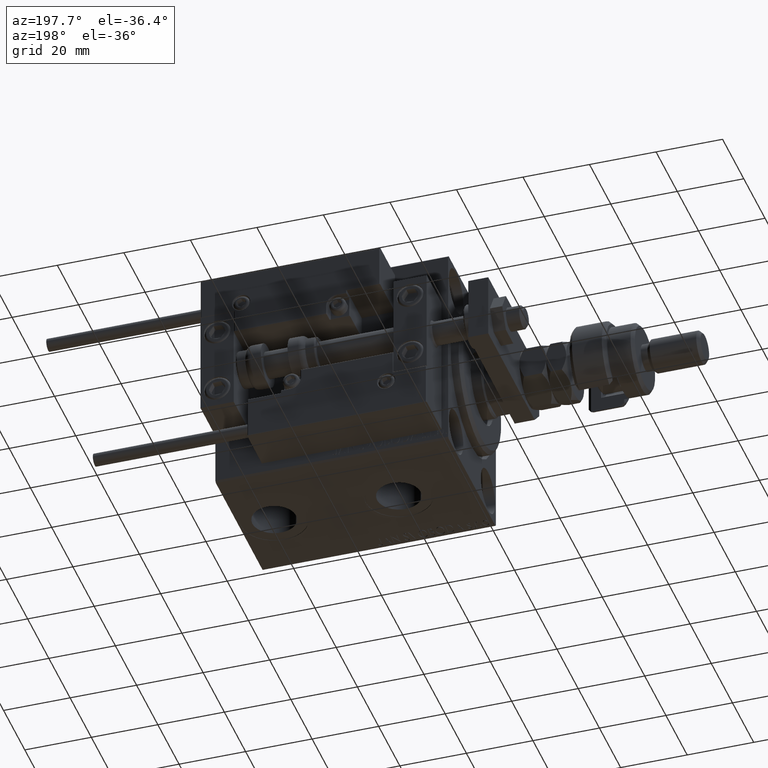
[diagram: clean part render]
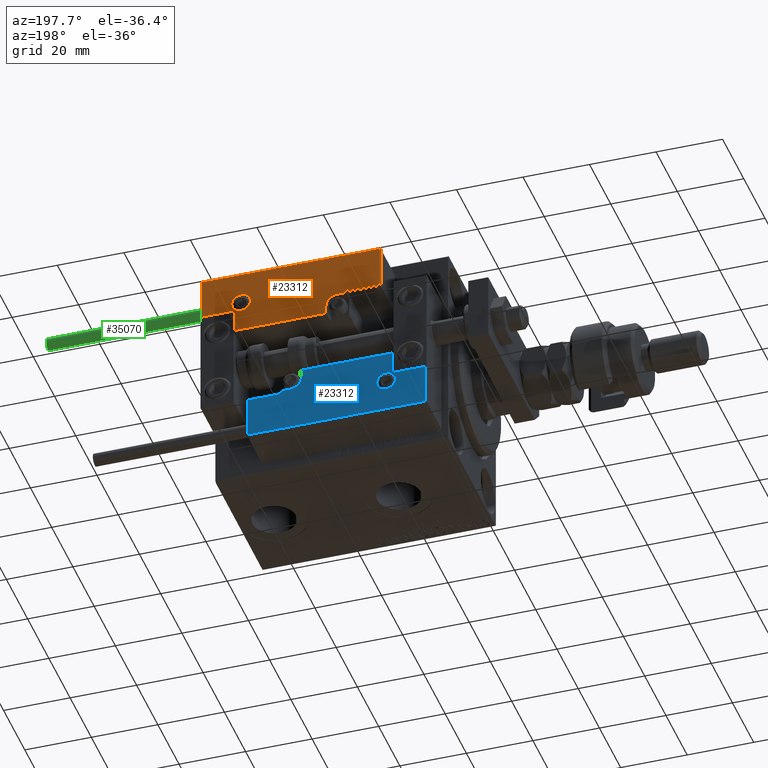
[diagram: same view with three faces highlighted in distinct colors, each labeled with its STEP entity id]
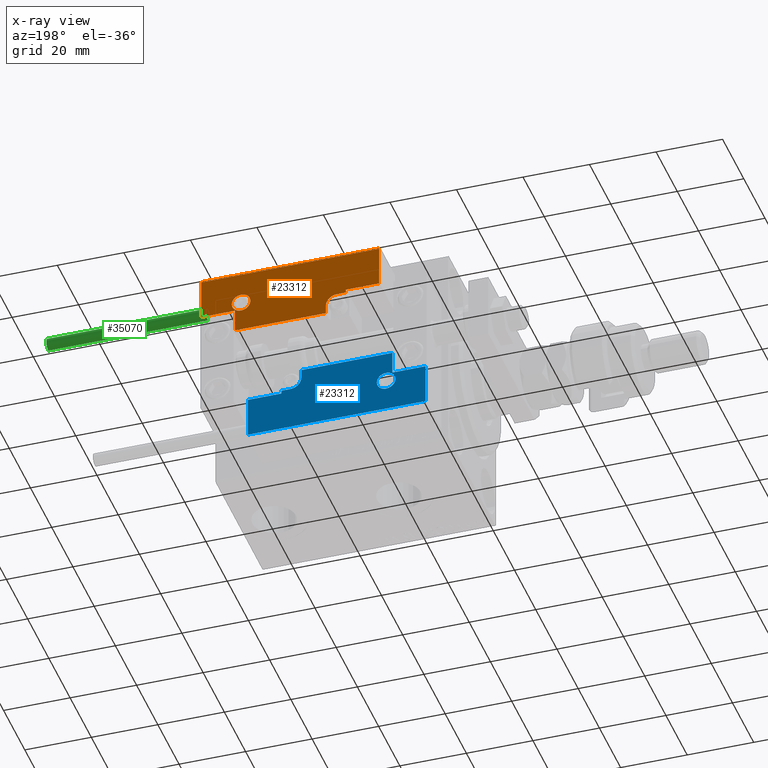
[diagram: x-ray of the same camera — body ghosted, the three highlighted faces saturated]
A machine part, auxiliary view with three faces highlighted in distinct colors.
The next image is the same camera in x-ray (body ghosted, the three faces saturated) — at least one of them is partly hidden behind the body in this view.
Their STEP definitions:

[orange] entity #23312 — the highlighted planar face has unit normal (0, 1, -0).
#236 = LINE ( 'NONE', #46682, #44956 ) ;
#1517 = FACE_BOUND ( 'NONE', #27808, .T. ) ;
#1720 = EDGE_CURVE ( 'NONE', #45491, #32189, #6493, .T. ) ;
#2105 = AXIS2_PLACEMENT_3D ( 'NONE', #18276, #8935, #42463 ) ;
#2129 = CARTESIAN_POINT ( 'NONE',  ( 16.69999999999999929, 7.000000000000009770, 14.00000000000000000 ) ) ;
#3118 = VECTOR ( 'NONE', #28519, 1000.000000000000000 ) ;
#3314 = AXIS2_PLACEMENT_3D ( 'NONE', #18084, #34855, #38711 ) ;
#3711 = CARTESIAN_POINT ( 'NONE',  ( 11.00000000000000000, 0.3000000000000032085, 14.00000000000000000 ) ) ;
#4548 = FACE_OUTER_BOUND ( 'NONE', #38351, .T. ) ;
#4816 = ORIENTED_EDGE ( 'NONE', *, *, #30326, .T. ) ;
#5011 = EDGE_CURVE ( 'NONE', #23961, #24970, #16414, .T. ) ;
#5550 = CARTESIAN_POINT ( 'NONE',  ( 26.70000000000006324, 19.70000000000001705, 14.00000000000000000 ) ) ;
#5826 = ORIENTED_EDGE ( 'NONE', *, *, #10098, .T. ) ;
#5973 = LINE ( 'NONE', #22728, #50767 ) ;
#6493 = CIRCLE ( 'NONE', #43337, 2.800000000000000266 ) ;
#7838 = VERTEX_POINT ( 'NONE', #5550 ) ;
#8111 = VECTOR ( 'NONE', #9545, 1000.000000000000000 ) ;
#8544 = VECTOR ( 'NONE', #35937, 1000.000000000000000 ) ;
#8789 = CARTESIAN_POINT ( 'NONE',  ( -17.59999999999994813, 9.800000000000004263, 14.00000000000000000 ) ) ;
#8935 = DIRECTION ( 'NONE',  ( -0.000000000000000000, 0.000000000000000000, 1.000000000000000000 ) ) ;
#9347 = CARTESIAN_POINT ( 'NONE',  ( 16.69999999999999929, 6.300000000000003375, 14.00000000000000000 ) ) ;
#9545 = DIRECTION ( 'NONE',  ( 0.000000000000000000, 1.000000000000000000, -0.000000000000000000 ) ) ;
#9729 = DIRECTION ( 'NONE',  ( 1.000000000000000000, 5.782411586589357639E-16, -0.000000000000000000 ) ) ;
#10098 = EDGE_CURVE ( 'NONE', #24970, #48032, #25236, .T. ) ;
#10448 = DIRECTION ( 'NONE',  ( 1.000000000000000000, -1.734723475976815230E-16, 0.000000000000000000 ) ) ;
#10600 = VERTEX_POINT ( 'NONE', #27606 ) ;
#11315 = DIRECTION ( 'NONE',  ( 1.000000000000000000, 0.000000000000000000, 0.000000000000000000 ) ) ;
#11507 = LINE ( 'NONE', #49420, #23176 ) ;
#11827 = EDGE_CURVE ( 'NONE', #45179, #28723, #35729, .T. ) ;
#12784 = DIRECTION ( 'NONE',  ( 1.000000000000000000, -0.000000000000000000, 0.000000000000000000 ) ) ;
#13261 = ORIENTED_EDGE ( 'NONE', *, *, #41959, .T. ) ;
#13847 = EDGE_CURVE ( 'NONE', #48032, #40675, #14126, .T. ) ;
#14126 = LINE ( 'NONE', #30625, #22947 ) ;
#14564 = CARTESIAN_POINT ( 'NONE',  ( 10.69999999999999929, 3.000000000000003109, 14.00000000000000000 ) ) ;
#15610 = CIRCLE ( 'NONE', #50717, 2.800000000000000266 ) ;
#15704 = DIRECTION ( 'NONE',  ( 0.000000000000000000, -0.000000000000000000, -1.000000000000000000 ) ) ;
#16414 = LINE ( 'NONE', #37037, #3118 ) ;
#17125 = ORIENTED_EDGE ( 'NONE', *, *, #13847, .T. ) ;
#18084 = CARTESIAN_POINT ( 'NONE',  ( 13.99999999999999822, 3.000000000000002665, 14.00000000000000000 ) ) ;
#18276 = CARTESIAN_POINT ( 'NONE',  ( 0.000000000000000000, 0.000000000000000000, 14.00000000000000000 ) ) ;
#18604 = DIRECTION ( 'NONE',  ( 0.000000000000000000, -1.000000000000000000, 0.000000000000000000 ) ) ;
#19535 = CARTESIAN_POINT ( 'NONE',  ( -11.99999999999994849, 9.800000000000004263, 14.00000000000000000 ) ) ;
#19909 = CARTESIAN_POINT ( 'NONE',  ( -16.69999999999999218, 7.300000000000003375, 14.00000000000000000 ) ) ;
#20152 = EDGE_CURVE ( 'NONE', #51452, #38595, #11507, .T. ) ;
#20999 = DIRECTION ( 'NONE',  ( 0.000000000000000000, -0.000000000000000000, -1.000000000000000000 ) ) ;
#21382 = LINE ( 'NONE', #50797, #21646 ) ;
#21646 = VECTOR ( 'NONE', #47229, 1000.000000000000000 ) ;
#21911 = EDGE_CURVE ( 'NONE', #50750, #23961, #50427, .T. ) ;
#22728 = CARTESIAN_POINT ( 'NONE',  ( -16.69999999999999218, 3.252606517456513302E-15, 14.00000000000000000 ) ) ;
#22947 = VECTOR ( 'NONE', #9729, 1000.000000000000000 ) ;
#23176 = VECTOR ( 'NONE', #40901, 1000.000000000000000 ) ;
#23312 = ADVANCED_FACE ( 'NONE', ( #1517, #4548 ), #25976, .T. ) ;
#23961 = VERTEX_POINT ( 'NONE', #30527 ) ;
#24673 = ORIENTED_EDGE ( 'NONE', *, *, #1720, .T. ) ;
#24970 = VERTEX_POINT ( 'NONE', #14564 ) ;
#25025 = VECTOR ( 'NONE', #12784, 1000.000000000000000 ) ;
#25236 = CIRCLE ( 'NONE', #3314, 3.299999999999997158 ) ;
#25976 = PLANE ( 'NONE',  #2105 ) ;
#26295 = LINE ( 'NONE', #43066, #8111 ) ;
#27606 = CARTESIAN_POINT ( 'NONE',  ( -26.69999999999993534, 19.70000000000002061, 14.00000000000000000 ) ) ;
#27808 = EDGE_LOOP ( 'NONE', ( #32474, #24673 ) ) ;
#28519 = DIRECTION ( 'NONE',  ( -0.000000000000000000, 1.000000000000000000, -0.000000000000000000 ) ) ;
#28723 = VERTEX_POINT ( 'NONE', #19909 ) ;
#29283 = ORIENTED_EDGE ( 'NONE', *, *, #29295, .T. ) ;
#29295 = EDGE_CURVE ( 'NONE', #10600, #45179, #21382, .T. ) ;
#30074 = CARTESIAN_POINT ( 'NONE',  ( -14.79999999999994920, 9.800000000000004263, 14.00000000000000000 ) ) ;
#30326 = EDGE_CURVE ( 'NONE', #40675, #51452, #31277, .T. ) ;
#30527 = CARTESIAN_POINT ( 'NONE',  ( 10.69999999999999929, 0.3000000000000032085, 14.00000000000000000 ) ) ;
#30625 = CARTESIAN_POINT ( 'NONE',  ( 17.00000000000000000, 6.300000000000003375, 14.00000000000000000 ) ) ;
#30906 = EDGE_CURVE ( 'NONE', #32189, #45491, #15610, .T. ) ;
#31277 = LINE ( 'NONE', #2129, #8544 ) ;
#32189 = VERTEX_POINT ( 'NONE', #19535 ) ;
#32474 = ORIENTED_EDGE ( 'NONE', *, *, #30906, .T. ) ;
#34750 = DIRECTION ( 'NONE',  ( 1.000000000000000000, 0.000000000000000000, 0.000000000000000000 ) ) ;
#34855 = DIRECTION ( 'NONE',  ( 0.000000000000000000, -0.000000000000000000, -1.000000000000000000 ) ) ;
#35729 = LINE ( 'NONE', #48093, #43061 ) ;
#35937 = DIRECTION ( 'NONE',  ( 9.912705577010318647E-16, 1.000000000000000000, 0.000000000000000000 ) ) ;
#37037 = CARTESIAN_POINT ( 'NONE',  ( 10.69999999999999929, 3.000000000000003109, 14.00000000000000000 ) ) ;
#37461 = ORIENTED_EDGE ( 'NONE', *, *, #11827, .T. ) ;
#37927 = ORIENTED_EDGE ( 'NONE', *, *, #21911, .T. ) ;
#38351 = EDGE_LOOP ( 'NONE', ( #13261, #37927, #46037, #5826, #17125, #4816, #45709, #42967, #46381, #29283, #37461 ) ) ;
#38595 = VERTEX_POINT ( 'NONE', #42474 ) ;
#38711 = DIRECTION ( 'NONE',  ( 1.000000000000000000, 0.000000000000000000, 0.000000000000000000 ) ) ;
#40675 = VERTEX_POINT ( 'NONE', #9347 ) ;
#40901 = DIRECTION ( 'NONE',  ( 1.000000000000000000, -1.734723475976796001E-16, 0.000000000000000000 ) ) ;
#41959 = EDGE_CURVE ( 'NONE', #28723, #50750, #5973, .T. ) ;
#42463 = DIRECTION ( 'NONE',  ( 1.000000000000000000, 0.000000000000000000, 0.000000000000000000 ) ) ;
#42474 = CARTESIAN_POINT ( 'NONE',  ( 26.70000000000006324, 7.300000000000007816, 14.00000000000000000 ) ) ;
#42967 = ORIENTED_EDGE ( 'NONE', *, *, #54181, .T. ) ;
#43061 = VECTOR ( 'NONE', #10448, 1000.000000000000000 ) ;
#43066 = CARTESIAN_POINT ( 'NONE',  ( 26.70000000000006324, 20.00000000000001776, 14.00000000000000000 ) ) ;
#43337 = AXIS2_PLACEMENT_3D ( 'NONE', #45100, #15704, #11315 ) ;
#44405 = CARTESIAN_POINT ( 'NONE',  ( -26.69999999999994600, 7.300000000000005151, 14.00000000000000000 ) ) ;
#44956 = VECTOR ( 'NONE', #50805, 1000.000000000000000 ) ;
#45100 = CARTESIAN_POINT ( 'NONE',  ( -14.79999999999994920, 9.800000000000004263, 14.00000000000000000 ) ) ;
#45179 = VERTEX_POINT ( 'NONE', #44405 ) ;
#45491 = VERTEX_POINT ( 'NONE', #8789 ) ;
#45709 = ORIENTED_EDGE ( 'NONE', *, *, #20152, .T. ) ;
#46037 = ORIENTED_EDGE ( 'NONE', *, *, #5011, .T. ) ;
#46381 = ORIENTED_EDGE ( 'NONE', *, *, #50051, .T. ) ;
#46682 = CARTESIAN_POINT ( 'NONE',  ( -26.99999999999993605, 19.70000000000002061, 14.00000000000000000 ) ) ;
#47229 = DIRECTION ( 'NONE',  ( -8.006416042969869188E-16, -1.000000000000000000, 0.000000000000000000 ) ) ;
#48032 = VERTEX_POINT ( 'NONE', #50540 ) ;
#48093 = CARTESIAN_POINT ( 'NONE',  ( -16.99999999999999289, 7.300000000000003375, 14.00000000000000000 ) ) ;
#49420 = CARTESIAN_POINT ( 'NONE',  ( 27.00000000000006395, 7.300000000000007816, 14.00000000000000000 ) ) ;
#50051 = EDGE_CURVE ( 'NONE', #7838, #10600, #236, .T. ) ;
#50421 = CARTESIAN_POINT ( 'NONE',  ( 16.69999999999999929, 7.300000000000009592, 14.00000000000000000 ) ) ;
#50427 = LINE ( 'NONE', #3711, #25025 ) ;
#50540 = CARTESIAN_POINT ( 'NONE',  ( 13.99999999999999822, 6.300000000000001599, 14.00000000000000000 ) ) ;
#50717 = AXIS2_PLACEMENT_3D ( 'NONE', #30074, #20999, #34750 ) ;
#50750 = VERTEX_POINT ( 'NONE', #52303 ) ;
#50767 = VECTOR ( 'NONE', #18604, 1000.000000000000000 ) ;
#50797 = CARTESIAN_POINT ( 'NONE',  ( -26.69999999999994600, 7.000000000000005329, 14.00000000000000000 ) ) ;
#50805 = DIRECTION ( 'NONE',  ( -1.000000000000000000, 6.424901762877063495E-17, -0.000000000000000000 ) ) ;
#51452 = VERTEX_POINT ( 'NONE', #50421 ) ;
#52303 = CARTESIAN_POINT ( 'NONE',  ( -16.69999999999999218, 0.3000000000000032085, 14.00000000000000000 ) ) ;
#54181 = EDGE_CURVE ( 'NONE', #38595, #7838, #26295, .T. ) ;

[blue] entity #23312 — the highlighted planar face has unit normal (-0, 1, -0).
#236 = LINE ( 'NONE', #46682, #44956 ) ;
#1517 = FACE_BOUND ( 'NONE', #27808, .T. ) ;
#1720 = EDGE_CURVE ( 'NONE', #45491, #32189, #6493, .T. ) ;
#2105 = AXIS2_PLACEMENT_3D ( 'NONE', #18276, #8935, #42463 ) ;
#2129 = CARTESIAN_POINT ( 'NONE',  ( 16.69999999999999929, 7.000000000000009770, 14.00000000000000000 ) ) ;
#3118 = VECTOR ( 'NONE', #28519, 1000.000000000000000 ) ;
#3314 = AXIS2_PLACEMENT_3D ( 'NONE', #18084, #34855, #38711 ) ;
#3711 = CARTESIAN_POINT ( 'NONE',  ( 11.00000000000000000, 0.3000000000000032085, 14.00000000000000000 ) ) ;
#4548 = FACE_OUTER_BOUND ( 'NONE', #38351, .T. ) ;
#4816 = ORIENTED_EDGE ( 'NONE', *, *, #30326, .T. ) ;
#5011 = EDGE_CURVE ( 'NONE', #23961, #24970, #16414, .T. ) ;
#5550 = CARTESIAN_POINT ( 'NONE',  ( 26.70000000000006324, 19.70000000000001705, 14.00000000000000000 ) ) ;
#5826 = ORIENTED_EDGE ( 'NONE', *, *, #10098, .T. ) ;
#5973 = LINE ( 'NONE', #22728, #50767 ) ;
#6493 = CIRCLE ( 'NONE', #43337, 2.800000000000000266 ) ;
#7838 = VERTEX_POINT ( 'NONE', #5550 ) ;
#8111 = VECTOR ( 'NONE', #9545, 1000.000000000000000 ) ;
#8544 = VECTOR ( 'NONE', #35937, 1000.000000000000000 ) ;
#8789 = CARTESIAN_POINT ( 'NONE',  ( -17.59999999999994813, 9.800000000000004263, 14.00000000000000000 ) ) ;
#8935 = DIRECTION ( 'NONE',  ( -0.000000000000000000, 0.000000000000000000, 1.000000000000000000 ) ) ;
#9347 = CARTESIAN_POINT ( 'NONE',  ( 16.69999999999999929, 6.300000000000003375, 14.00000000000000000 ) ) ;
#9545 = DIRECTION ( 'NONE',  ( 0.000000000000000000, 1.000000000000000000, -0.000000000000000000 ) ) ;
#9729 = DIRECTION ( 'NONE',  ( 1.000000000000000000, 5.782411586589357639E-16, -0.000000000000000000 ) ) ;
#10098 = EDGE_CURVE ( 'NONE', #24970, #48032, #25236, .T. ) ;
#10448 = DIRECTION ( 'NONE',  ( 1.000000000000000000, -1.734723475976815230E-16, 0.000000000000000000 ) ) ;
#10600 = VERTEX_POINT ( 'NONE', #27606 ) ;
#11315 = DIRECTION ( 'NONE',  ( 1.000000000000000000, 0.000000000000000000, 0.000000000000000000 ) ) ;
#11507 = LINE ( 'NONE', #49420, #23176 ) ;
#11827 = EDGE_CURVE ( 'NONE', #45179, #28723, #35729, .T. ) ;
#12784 = DIRECTION ( 'NONE',  ( 1.000000000000000000, -0.000000000000000000, 0.000000000000000000 ) ) ;
#13261 = ORIENTED_EDGE ( 'NONE', *, *, #41959, .T. ) ;
#13847 = EDGE_CURVE ( 'NONE', #48032, #40675, #14126, .T. ) ;
#14126 = LINE ( 'NONE', #30625, #22947 ) ;
#14564 = CARTESIAN_POINT ( 'NONE',  ( 10.69999999999999929, 3.000000000000003109, 14.00000000000000000 ) ) ;
#15610 = CIRCLE ( 'NONE', #50717, 2.800000000000000266 ) ;
#15704 = DIRECTION ( 'NONE',  ( 0.000000000000000000, -0.000000000000000000, -1.000000000000000000 ) ) ;
#16414 = LINE ( 'NONE', #37037, #3118 ) ;
#17125 = ORIENTED_EDGE ( 'NONE', *, *, #13847, .T. ) ;
#18084 = CARTESIAN_POINT ( 'NONE',  ( 13.99999999999999822, 3.000000000000002665, 14.00000000000000000 ) ) ;
#18276 = CARTESIAN_POINT ( 'NONE',  ( 0.000000000000000000, 0.000000000000000000, 14.00000000000000000 ) ) ;
#18604 = DIRECTION ( 'NONE',  ( 0.000000000000000000, -1.000000000000000000, 0.000000000000000000 ) ) ;
#19535 = CARTESIAN_POINT ( 'NONE',  ( -11.99999999999994849, 9.800000000000004263, 14.00000000000000000 ) ) ;
#19909 = CARTESIAN_POINT ( 'NONE',  ( -16.69999999999999218, 7.300000000000003375, 14.00000000000000000 ) ) ;
#20152 = EDGE_CURVE ( 'NONE', #51452, #38595, #11507, .T. ) ;
#20999 = DIRECTION ( 'NONE',  ( 0.000000000000000000, -0.000000000000000000, -1.000000000000000000 ) ) ;
#21382 = LINE ( 'NONE', #50797, #21646 ) ;
#21646 = VECTOR ( 'NONE', #47229, 1000.000000000000000 ) ;
#21911 = EDGE_CURVE ( 'NONE', #50750, #23961, #50427, .T. ) ;
#22728 = CARTESIAN_POINT ( 'NONE',  ( -16.69999999999999218, 3.252606517456513302E-15, 14.00000000000000000 ) ) ;
#22947 = VECTOR ( 'NONE', #9729, 1000.000000000000000 ) ;
#23176 = VECTOR ( 'NONE', #40901, 1000.000000000000000 ) ;
#23312 = ADVANCED_FACE ( 'NONE', ( #1517, #4548 ), #25976, .T. ) ;
#23961 = VERTEX_POINT ( 'NONE', #30527 ) ;
#24673 = ORIENTED_EDGE ( 'NONE', *, *, #1720, .T. ) ;
#24970 = VERTEX_POINT ( 'NONE', #14564 ) ;
#25025 = VECTOR ( 'NONE', #12784, 1000.000000000000000 ) ;
#25236 = CIRCLE ( 'NONE', #3314, 3.299999999999997158 ) ;
#25976 = PLANE ( 'NONE',  #2105 ) ;
#26295 = LINE ( 'NONE', #43066, #8111 ) ;
#27606 = CARTESIAN_POINT ( 'NONE',  ( -26.69999999999993534, 19.70000000000002061, 14.00000000000000000 ) ) ;
#27808 = EDGE_LOOP ( 'NONE', ( #32474, #24673 ) ) ;
#28519 = DIRECTION ( 'NONE',  ( -0.000000000000000000, 1.000000000000000000, -0.000000000000000000 ) ) ;
#28723 = VERTEX_POINT ( 'NONE', #19909 ) ;
#29283 = ORIENTED_EDGE ( 'NONE', *, *, #29295, .T. ) ;
#29295 = EDGE_CURVE ( 'NONE', #10600, #45179, #21382, .T. ) ;
#30074 = CARTESIAN_POINT ( 'NONE',  ( -14.79999999999994920, 9.800000000000004263, 14.00000000000000000 ) ) ;
#30326 = EDGE_CURVE ( 'NONE', #40675, #51452, #31277, .T. ) ;
#30527 = CARTESIAN_POINT ( 'NONE',  ( 10.69999999999999929, 0.3000000000000032085, 14.00000000000000000 ) ) ;
#30625 = CARTESIAN_POINT ( 'NONE',  ( 17.00000000000000000, 6.300000000000003375, 14.00000000000000000 ) ) ;
#30906 = EDGE_CURVE ( 'NONE', #32189, #45491, #15610, .T. ) ;
#31277 = LINE ( 'NONE', #2129, #8544 ) ;
#32189 = VERTEX_POINT ( 'NONE', #19535 ) ;
#32474 = ORIENTED_EDGE ( 'NONE', *, *, #30906, .T. ) ;
#34750 = DIRECTION ( 'NONE',  ( 1.000000000000000000, 0.000000000000000000, 0.000000000000000000 ) ) ;
#34855 = DIRECTION ( 'NONE',  ( 0.000000000000000000, -0.000000000000000000, -1.000000000000000000 ) ) ;
#35729 = LINE ( 'NONE', #48093, #43061 ) ;
#35937 = DIRECTION ( 'NONE',  ( 9.912705577010318647E-16, 1.000000000000000000, 0.000000000000000000 ) ) ;
#37037 = CARTESIAN_POINT ( 'NONE',  ( 10.69999999999999929, 3.000000000000003109, 14.00000000000000000 ) ) ;
#37461 = ORIENTED_EDGE ( 'NONE', *, *, #11827, .T. ) ;
#37927 = ORIENTED_EDGE ( 'NONE', *, *, #21911, .T. ) ;
#38351 = EDGE_LOOP ( 'NONE', ( #13261, #37927, #46037, #5826, #17125, #4816, #45709, #42967, #46381, #29283, #37461 ) ) ;
#38595 = VERTEX_POINT ( 'NONE', #42474 ) ;
#38711 = DIRECTION ( 'NONE',  ( 1.000000000000000000, 0.000000000000000000, 0.000000000000000000 ) ) ;
#40675 = VERTEX_POINT ( 'NONE', #9347 ) ;
#40901 = DIRECTION ( 'NONE',  ( 1.000000000000000000, -1.734723475976796001E-16, 0.000000000000000000 ) ) ;
#41959 = EDGE_CURVE ( 'NONE', #28723, #50750, #5973, .T. ) ;
#42463 = DIRECTION ( 'NONE',  ( 1.000000000000000000, 0.000000000000000000, 0.000000000000000000 ) ) ;
#42474 = CARTESIAN_POINT ( 'NONE',  ( 26.70000000000006324, 7.300000000000007816, 14.00000000000000000 ) ) ;
#42967 = ORIENTED_EDGE ( 'NONE', *, *, #54181, .T. ) ;
#43061 = VECTOR ( 'NONE', #10448, 1000.000000000000000 ) ;
#43066 = CARTESIAN_POINT ( 'NONE',  ( 26.70000000000006324, 20.00000000000001776, 14.00000000000000000 ) ) ;
#43337 = AXIS2_PLACEMENT_3D ( 'NONE', #45100, #15704, #11315 ) ;
#44405 = CARTESIAN_POINT ( 'NONE',  ( -26.69999999999994600, 7.300000000000005151, 14.00000000000000000 ) ) ;
#44956 = VECTOR ( 'NONE', #50805, 1000.000000000000000 ) ;
#45100 = CARTESIAN_POINT ( 'NONE',  ( -14.79999999999994920, 9.800000000000004263, 14.00000000000000000 ) ) ;
#45179 = VERTEX_POINT ( 'NONE', #44405 ) ;
#45491 = VERTEX_POINT ( 'NONE', #8789 ) ;
#45709 = ORIENTED_EDGE ( 'NONE', *, *, #20152, .T. ) ;
#46037 = ORIENTED_EDGE ( 'NONE', *, *, #5011, .T. ) ;
#46381 = ORIENTED_EDGE ( 'NONE', *, *, #50051, .T. ) ;
#46682 = CARTESIAN_POINT ( 'NONE',  ( -26.99999999999993605, 19.70000000000002061, 14.00000000000000000 ) ) ;
#47229 = DIRECTION ( 'NONE',  ( -8.006416042969869188E-16, -1.000000000000000000, 0.000000000000000000 ) ) ;
#48032 = VERTEX_POINT ( 'NONE', #50540 ) ;
#48093 = CARTESIAN_POINT ( 'NONE',  ( -16.99999999999999289, 7.300000000000003375, 14.00000000000000000 ) ) ;
#49420 = CARTESIAN_POINT ( 'NONE',  ( 27.00000000000006395, 7.300000000000007816, 14.00000000000000000 ) ) ;
#50051 = EDGE_CURVE ( 'NONE', #7838, #10600, #236, .T. ) ;
#50421 = CARTESIAN_POINT ( 'NONE',  ( 16.69999999999999929, 7.300000000000009592, 14.00000000000000000 ) ) ;
#50427 = LINE ( 'NONE', #3711, #25025 ) ;
#50540 = CARTESIAN_POINT ( 'NONE',  ( 13.99999999999999822, 6.300000000000001599, 14.00000000000000000 ) ) ;
#50717 = AXIS2_PLACEMENT_3D ( 'NONE', #30074, #20999, #34750 ) ;
#50750 = VERTEX_POINT ( 'NONE', #52303 ) ;
#50767 = VECTOR ( 'NONE', #18604, 1000.000000000000000 ) ;
#50797 = CARTESIAN_POINT ( 'NONE',  ( -26.69999999999994600, 7.000000000000005329, 14.00000000000000000 ) ) ;
#50805 = DIRECTION ( 'NONE',  ( -1.000000000000000000, 6.424901762877063495E-17, -0.000000000000000000 ) ) ;
#51452 = VERTEX_POINT ( 'NONE', #50421 ) ;
#52303 = CARTESIAN_POINT ( 'NONE',  ( -16.69999999999999218, 0.3000000000000032085, 14.00000000000000000 ) ) ;
#54181 = EDGE_CURVE ( 'NONE', #38595, #7838, #26295, .T. ) ;

[green] entity #35070 — the highlighted cylindrical surface (edge-blend (fillet) strip) has radius 1.9 mm, axis along (-1, -0, 0).
#743 = EDGE_CURVE ( 'NONE', #21976, #34455, #32184, .T. ) ;
#1111 = VECTOR ( 'NONE', #26891, 1000.000000000000000 ) ;
#2745 = VERTEX_POINT ( 'NONE', #48227 ) ;
#4062 = CYLINDRICAL_SURFACE ( 'NONE', #41060, 1.899999999999999467 ) ;
#4531 = CARTESIAN_POINT ( 'NONE',  ( -1.899999999999999467, 0.000000000000000000, 48.00000000000000000 ) ) ;
#5048 = AXIS2_PLACEMENT_3D ( 'NONE', #45580, #7654, #10973 ) ;
#6009 = LINE ( 'NONE', #51638, #1111 ) ;
#6352 = CARTESIAN_POINT ( 'NONE',  ( -1.899999999999999467, 0.000000000000000000, 0.000000000000000000 ) ) ;
#6637 = ORIENTED_EDGE ( 'NONE', *, *, #44262, .F. ) ;
#7175 = DIRECTION ( 'NONE',  ( -0.000000000000000000, -0.000000000000000000, -1.000000000000000000 ) ) ;
#7654 = DIRECTION ( 'NONE',  ( 0.000000000000000000, 0.000000000000000000, 1.000000000000000000 ) ) ;
#9968 = EDGE_CURVE ( 'NONE', #22276, #34455, #40152, .T. ) ;
#10488 = CIRCLE ( 'NONE', #49987, 1.899999999999999467 ) ;
#10973 = DIRECTION ( 'NONE',  ( 1.000000000000000000, 0.000000000000000000, 0.000000000000000000 ) ) ;
#11906 = DIRECTION ( 'NONE',  ( 1.000000000000000000, 0.000000000000000000, 0.000000000000000000 ) ) ;
#15735 = EDGE_CURVE ( 'NONE', #2745, #22276, #6009, .T. ) ;
#16974 = DIRECTION ( 'NONE',  ( -0.000000000000000000, -0.000000000000000000, -1.000000000000000000 ) ) ;
#18651 = ORIENTED_EDGE ( 'NONE', *, *, #9968, .T. ) ;
#20809 = CARTESIAN_POINT ( 'NONE',  ( 0.000000000000000000, 0.000000000000000000, 48.00000000000000000 ) ) ;
#21354 = FACE_OUTER_BOUND ( 'NONE', #40737, .T. ) ;
#21976 = VERTEX_POINT ( 'NONE', #4531 ) ;
#22276 = VERTEX_POINT ( 'NONE', #51451 ) ;
#26891 = DIRECTION ( 'NONE',  ( -0.000000000000000000, -0.000000000000000000, -1.000000000000000000 ) ) ;
#31692 = DIRECTION ( 'NONE',  ( 0.000000000000000000, 0.000000000000000000, 1.000000000000000000 ) ) ;
#32184 = LINE ( 'NONE', #48946, #32739 ) ;
#32739 = VECTOR ( 'NONE', #7175, 1000.000000000000000 ) ;
#32774 = CARTESIAN_POINT ( 'NONE',  ( 0.000000000000000000, 0.000000000000000000, 48.00000000000000000 ) ) ;
#33735 = DIRECTION ( 'NONE',  ( -1.000000000000000000, 0.000000000000000000, 0.000000000000000000 ) ) ;
#34455 = VERTEX_POINT ( 'NONE', #6352 ) ;
#35070 = ADVANCED_FACE ( 'NONE', ( #21354 ), #4062, .T. ) ;
#38892 = ORIENTED_EDGE ( 'NONE', *, *, #743, .F. ) ;
#40152 = CIRCLE ( 'NONE', #5048, 1.899999999999999467 ) ;
#40737 = EDGE_LOOP ( 'NONE', ( #6637, #49721, #18651, #38892 ) ) ;
#41060 = AXIS2_PLACEMENT_3D ( 'NONE', #20809, #16974, #33735 ) ;
#44262 = EDGE_CURVE ( 'NONE', #2745, #21976, #10488, .T. ) ;
#45580 = CARTESIAN_POINT ( 'NONE',  ( 0.000000000000000000, 0.000000000000000000, 0.000000000000000000 ) ) ;
#48227 = CARTESIAN_POINT ( 'NONE',  ( 1.899999999999999467, 2.326828918379970872E-16, 48.00000000000000000 ) ) ;
#48946 = CARTESIAN_POINT ( 'NONE',  ( -1.899999999999999467, 0.000000000000000000, 48.00000000000000000 ) ) ;
#49721 = ORIENTED_EDGE ( 'NONE', *, *, #15735, .T. ) ;
#49987 = AXIS2_PLACEMENT_3D ( 'NONE', #32774, #31692, #11906 ) ;
#51451 = CARTESIAN_POINT ( 'NONE',  ( 1.899999999999999467, 2.326828918379970872E-16, 0.000000000000000000 ) ) ;
#51638 = CARTESIAN_POINT ( 'NONE',  ( 1.899999999999999467, 2.326828918379970872E-16, 48.00000000000000000 ) ) ;